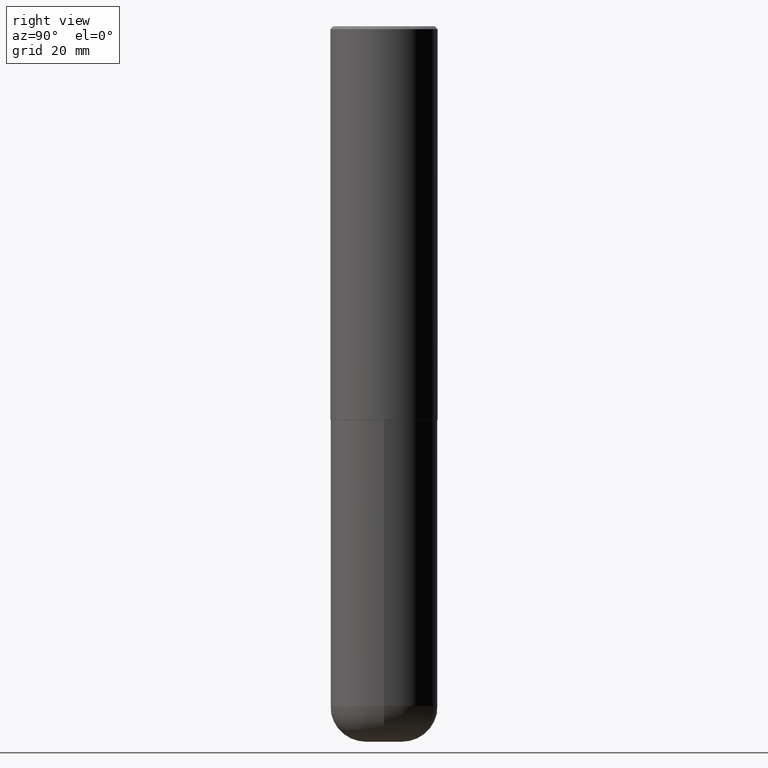
[diagram: clean part render]
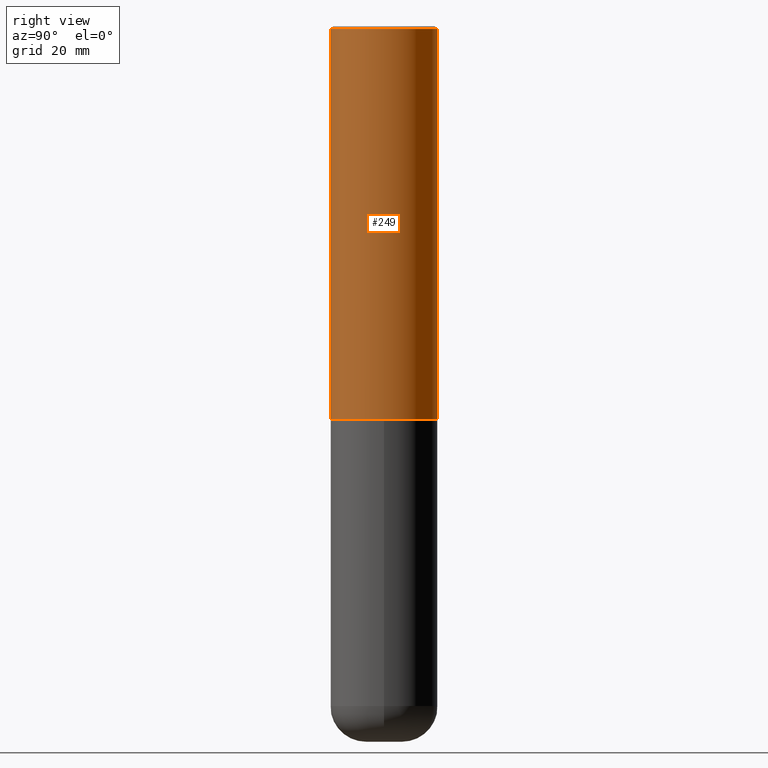
[diagram: same view with one face highlighted and labeled with its STEP entity id]
A machine part, right view. The second image highlights one B-rep face of the part: STEP entity #249.
In plain terms, the highlighted cylindrical surface (partial cylindrical patch) has radius 9.525 mm, axis along (-0, 0, 1).
Its self-contained STEP definition (entity closure, byte-faithful):
#5 = VERTEX_POINT ( 'NONE', #168 ) ;
#11 = ORIENTED_EDGE ( 'NONE', *, *, #46, .T. ) ;
#12 = DIRECTION ( 'NONE',  ( -6.982962677686266711E-15, -1.000000000000000000, 3.490662795793665951E-15 ) ) ;
#26 = EDGE_CURVE ( 'NONE', #341, #402, #356, .T. ) ;
#32 = VERTEX_POINT ( 'NONE', #273 ) ;
#33 = VECTOR ( 'NONE', #261, 39.37007874015748143 ) ;
#40 = CARTESIAN_POINT ( 'NONE',  ( 6.724165036897648492E-29, -9.595832025636787455E-15, -2.749000000000000110 ) ) ;
#46 = EDGE_CURVE ( 'NONE', #32, #5, #47, .T. ) ;
#47 = CIRCLE ( 'NONE', #157, 0.3750000000000003886 ) ;
#53 = AXIS2_PLACEMENT_3D ( 'NONE', #331, #300, #101 ) ;
#68 = EDGE_LOOP ( 'NONE', ( #11, #87, #265, #119 ) ) ;
#87 = ORIENTED_EDGE ( 'NONE', *, *, #255, .T. ) ;
#99 = LINE ( 'NONE', #134, #138 ) ;
#101 = DIRECTION ( 'NONE',  ( -6.982962677686265922E-15, -1.000000000000000000, 3.494488891895536035E-15 ) ) ;
#104 = CARTESIAN_POINT ( 'NONE',  ( -2.572686749164323547E-15, -0.3750000000000001110, -0.01999999999999877570 ) ) ;
#115 = AXIS2_PLACEMENT_3D ( 'NONE', #166, #213, #12 ) ;
#119 = ORIENTED_EDGE ( 'NONE', *, *, #176, .F. ) ;
#120 = LINE ( 'NONE', #123, #33 ) ;
#123 = CARTESIAN_POINT ( 'NONE',  ( -2.618611004132351594E-15, -0.3750000000000002220, 1.308998548422625521E-15 ) ) ;
#134 = CARTESIAN_POINT ( 'NONE',  ( 2.664535259100376880E-15, 0.3750000000000002220, -1.308998548422625521E-15 ) ) ;
#138 = VECTOR ( 'NONE', #239, 39.37007874015748143 ) ;
#157 = AXIS2_PLACEMENT_3D ( 'NONE', #40, #357, #386 ) ;
#166 = CARTESIAN_POINT ( 'NONE',  ( 0.000000000000000000, 0.000000000000000000, 0.000000000000000000 ) ) ;
#168 = CARTESIAN_POINT ( 'NONE',  ( 2.664535259100411196E-15, 0.3749999999999907296, -2.749000000000000998 ) ) ;
#176 = EDGE_CURVE ( 'NONE', #32, #341, #120, .T. ) ;
#212 = CYLINDRICAL_SURFACE ( 'NONE', #115, 0.3750000000000002220 ) ;
#213 = DIRECTION ( 'NONE',  ( -2.446040391741596606E-29, 3.490662795793665557E-15, 1.000000000000000000 ) ) ;
#239 = DIRECTION ( 'NONE',  ( -2.446040391741596606E-29, 3.490662795793665557E-15, 1.000000000000000000 ) ) ;
#249 = ADVANCED_FACE ( 'NONE', ( #370 ), #212, .T. ) ;
#255 = EDGE_CURVE ( 'NONE', #5, #402, #99, .T. ) ;
#261 = DIRECTION ( 'NONE',  ( -2.446040391741596606E-29, 3.490662795793665557E-15, 1.000000000000000000 ) ) ;
#265 = ORIENTED_EDGE ( 'NONE', *, *, #26, .F. ) ;
#273 = CARTESIAN_POINT ( 'NONE',  ( -2.618611004132284935E-15, -0.3750000000000099920, -2.748999999999999222 ) ) ;
#285 = CARTESIAN_POINT ( 'NONE',  ( 2.618611004132350411E-15, 0.3749999999999999445, -0.02000000000000139513 ) ) ;
#300 = DIRECTION ( 'NONE',  ( -2.446040391741596606E-29, 3.490662795793665557E-15, 1.000000000000000000 ) ) ;
#331 = CARTESIAN_POINT ( 'NONE',  ( 4.892080783483214581E-31, -6.981325591587361238E-17, -0.02000000000000008715 ) ) ;
#341 = VERTEX_POINT ( 'NONE', #104 ) ;
#356 = CIRCLE ( 'NONE', #53, 0.3750000000000000555 ) ;
#357 = DIRECTION ( 'NONE',  ( -2.446040391741596606E-29, 3.490662795793665557E-15, 1.000000000000000000 ) ) ;
#370 = FACE_OUTER_BOUND ( 'NONE', #68, .T. ) ;
#386 = DIRECTION ( 'NONE',  ( -6.982962677686265922E-15, -1.000000000000000000, 2.913971193241877611E-15 ) ) ;
#402 = VERTEX_POINT ( 'NONE', #285 ) ;